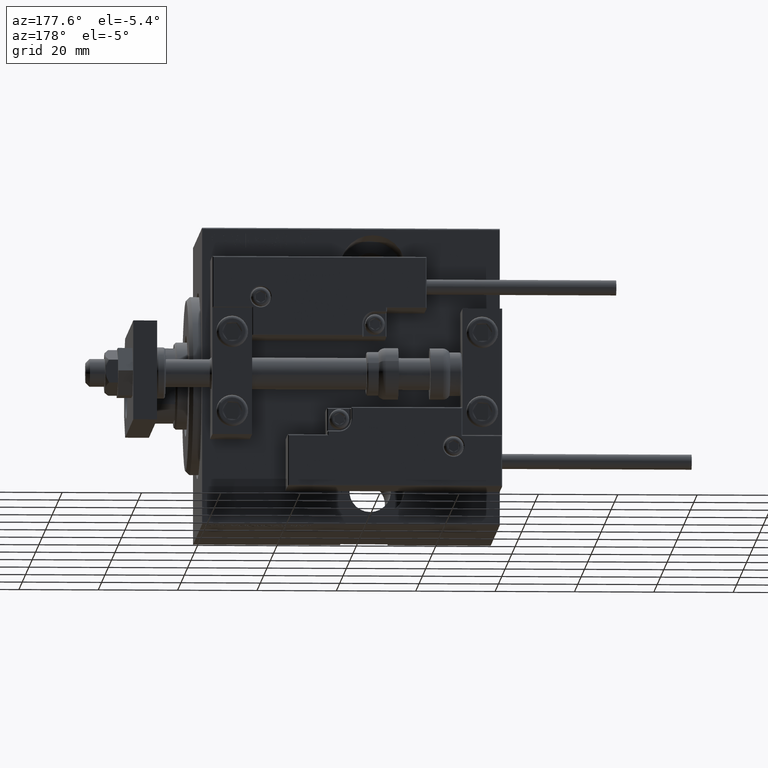
[diagram: clean part render]
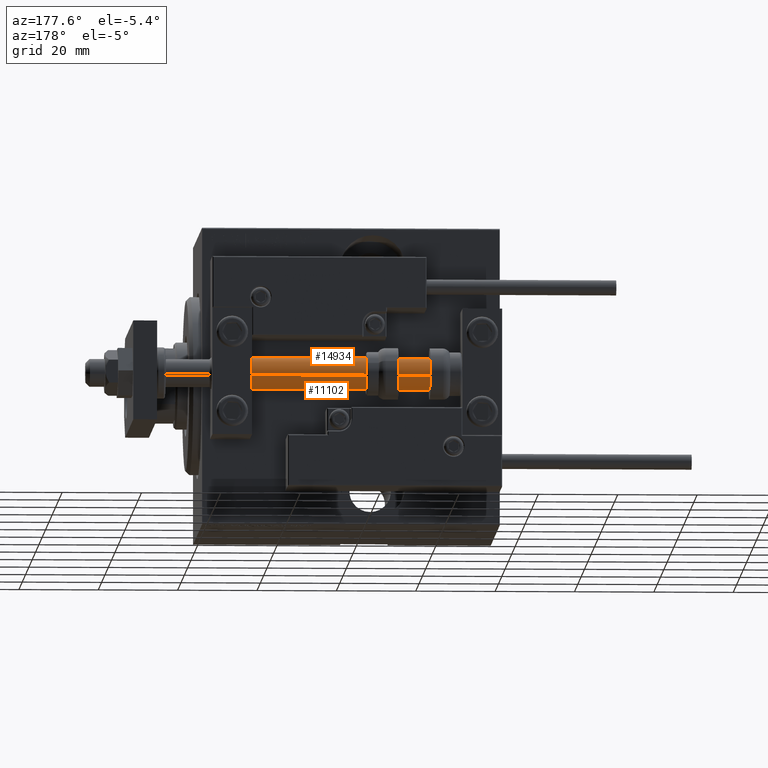
[diagram: same view with one multi-face feature highlighted, each face labeled with its STEP entity id]
A machine part, auxiliary view. The highlighted faces form ONE feature: a constant-radius fillet chain: 2 tangent blend faces with common blend radius 4 mm. The faces share edges in the B-rep.
Their STEP definitions:
[1] entity #14934 (Cylinder):
#660 = DIRECTION ( 'NONE',  ( -0.000000000000000000, -0.000000000000000000, 1.000000000000000000 ) ) ;
#909 = DIRECTION ( 'NONE',  ( 1.000000000000000000, 0.000000000000000000, 0.000000000000000000 ) ) ;
#1716 = DIRECTION ( 'NONE',  ( 1.000000000000000000, 0.000000000000000000, 0.000000000000000000 ) ) ;
#3554 = CARTESIAN_POINT ( 'NONE',  ( 4.000000000000000000, 4.898587196589412829E-16, 75.00000000000000000 ) ) ;
#5380 = AXIS2_PLACEMENT_3D ( 'NONE', #10639, #42113, #33807 ) ;
#5488 = CARTESIAN_POINT ( 'NONE',  ( 0.000000000000000000, 0.000000000000000000, 75.00000000000000000 ) ) ;
#6269 = ORIENTED_EDGE ( 'NONE', *, *, #44553, .F. ) ;
#9801 = VECTOR ( 'NONE', #34781, 1000.000000000000000 ) ;
#10639 = CARTESIAN_POINT ( 'NONE',  ( 0.000000000000000000, 0.000000000000000000, 75.00000000000000000 ) ) ;
#11188 = EDGE_CURVE ( 'NONE', #29276, #16529, #28252, .T. ) ;
#14575 = CIRCLE ( 'NONE', #36220, 4.000000000000000000 ) ;
#14934 = ADVANCED_FACE ( 'NONE', ( #37587 ), #19184, .T. ) ;
#15051 = CIRCLE ( 'NONE', #39951, 4.000000000000000000 ) ;
#16529 = VERTEX_POINT ( 'NONE', #27931 ) ;
#19168 = LINE ( 'NONE', #3554, #9801 ) ;
#19184 = CYLINDRICAL_SURFACE ( 'NONE', #5380, 4.000000000000000000 ) ;
#20866 = DIRECTION ( 'NONE',  ( 0.000000000000000000, 0.000000000000000000, 1.000000000000000000 ) ) ;
#21366 = VECTOR ( 'NONE', #24482, 1000.000000000000000 ) ;
#24482 = DIRECTION ( 'NONE',  ( -0.000000000000000000, -0.000000000000000000, -1.000000000000000000 ) ) ;
#24735 = ORIENTED_EDGE ( 'NONE', *, *, #29976, .F. ) ;
#27931 = CARTESIAN_POINT ( 'NONE',  ( -4.000000000000000000, 0.000000000000000000, 2.000000000000029310 ) ) ;
#28252 = LINE ( 'NONE', #35805, #21366 ) ;
#29276 = VERTEX_POINT ( 'NONE', #31023 ) ;
#29976 = EDGE_CURVE ( 'NONE', #47942, #44521, #19168, .T. ) ;
#31023 = CARTESIAN_POINT ( 'NONE',  ( -4.000000000000000000, 0.000000000000000000, 75.00000000000000000 ) ) ;
#31822 = EDGE_CURVE ( 'NONE', #16529, #44521, #15051, .T. ) ;
#33631 = EDGE_LOOP ( 'NONE', ( #24735, #6269, #47340, #48316 ) ) ;
#33807 = DIRECTION ( 'NONE',  ( -1.000000000000000000, 0.000000000000000000, 0.000000000000000000 ) ) ;
#34781 = DIRECTION ( 'NONE',  ( -0.000000000000000000, -0.000000000000000000, -1.000000000000000000 ) ) ;
#35410 = CARTESIAN_POINT ( 'NONE',  ( 0.000000000000000000, 0.000000000000000000, 2.000000000000029310 ) ) ;
#35805 = CARTESIAN_POINT ( 'NONE',  ( -4.000000000000000000, 0.000000000000000000, 75.00000000000000000 ) ) ;
#36220 = AXIS2_PLACEMENT_3D ( 'NONE', #5488, #20866, #1716 ) ;
#37587 = FACE_OUTER_BOUND ( 'NONE', #33631, .T. ) ;
#39951 = AXIS2_PLACEMENT_3D ( 'NONE', #35410, #660, #909 ) ;
#42113 = DIRECTION ( 'NONE',  ( -0.000000000000000000, -0.000000000000000000, -1.000000000000000000 ) ) ;
#43050 = CARTESIAN_POINT ( 'NONE',  ( 4.000000000000000000, 4.898587196589412829E-16, 2.000000000000029310 ) ) ;
#44521 = VERTEX_POINT ( 'NONE', #43050 ) ;
#44553 = EDGE_CURVE ( 'NONE', #29276, #47942, #14575, .T. ) ;
#45830 = CARTESIAN_POINT ( 'NONE',  ( 4.000000000000000000, 4.898587196589412829E-16, 75.00000000000000000 ) ) ;
#47340 = ORIENTED_EDGE ( 'NONE', *, *, #11188, .T. ) ;
#47942 = VERTEX_POINT ( 'NONE', #45830 ) ;
#48316 = ORIENTED_EDGE ( 'NONE', *, *, #31822, .T. ) ;
[2] entity #11102 (Cylinder):
#1116 = AXIS2_PLACEMENT_3D ( 'NONE', #21652, #29192, #44579 ) ;
#2970 = EDGE_CURVE ( 'NONE', #44521, #16529, #40535, .T. ) ;
#3554 = CARTESIAN_POINT ( 'NONE',  ( 4.000000000000000000, 4.898587196589412829E-16, 75.00000000000000000 ) ) ;
#6406 = ORIENTED_EDGE ( 'NONE', *, *, #7914, .F. ) ;
#7153 = ORIENTED_EDGE ( 'NONE', *, *, #11188, .F. ) ;
#7363 = FACE_OUTER_BOUND ( 'NONE', #31757, .T. ) ;
#7914 = EDGE_CURVE ( 'NONE', #47942, #29276, #28615, .T. ) ;
#9801 = VECTOR ( 'NONE', #34781, 1000.000000000000000 ) ;
#10903 = AXIS2_PLACEMENT_3D ( 'NONE', #16709, #43150, #21219 ) ;
#11102 = ADVANCED_FACE ( 'NONE', ( #7363 ), #46424, .T. ) ;
#11188 = EDGE_CURVE ( 'NONE', #29276, #16529, #28252, .T. ) ;
#16529 = VERTEX_POINT ( 'NONE', #27931 ) ;
#16709 = CARTESIAN_POINT ( 'NONE',  ( 0.000000000000000000, 0.000000000000000000, 75.00000000000000000 ) ) ;
#19168 = LINE ( 'NONE', #3554, #9801 ) ;
#21219 = DIRECTION ( 'NONE',  ( 1.000000000000000000, 0.000000000000000000, 0.000000000000000000 ) ) ;
#21366 = VECTOR ( 'NONE', #24482, 1000.000000000000000 ) ;
#21652 = CARTESIAN_POINT ( 'NONE',  ( 0.000000000000000000, 0.000000000000000000, 2.000000000000029310 ) ) ;
#22743 = CARTESIAN_POINT ( 'NONE',  ( 0.000000000000000000, 0.000000000000000000, 75.00000000000000000 ) ) ;
#24482 = DIRECTION ( 'NONE',  ( -0.000000000000000000, -0.000000000000000000, -1.000000000000000000 ) ) ;
#27931 = CARTESIAN_POINT ( 'NONE',  ( -4.000000000000000000, 0.000000000000000000, 2.000000000000029310 ) ) ;
#28252 = LINE ( 'NONE', #35805, #21366 ) ;
#28615 = CIRCLE ( 'NONE', #10903, 4.000000000000000000 ) ;
#29192 = DIRECTION ( 'NONE',  ( -0.000000000000000000, -0.000000000000000000, 1.000000000000000000 ) ) ;
#29276 = VERTEX_POINT ( 'NONE', #31023 ) ;
#29976 = EDGE_CURVE ( 'NONE', #47942, #44521, #19168, .T. ) ;
#31023 = CARTESIAN_POINT ( 'NONE',  ( -4.000000000000000000, 0.000000000000000000, 75.00000000000000000 ) ) ;
#31757 = EDGE_LOOP ( 'NONE', ( #6406, #32634, #40700, #7153 ) ) ;
#32634 = ORIENTED_EDGE ( 'NONE', *, *, #29976, .T. ) ;
#34781 = DIRECTION ( 'NONE',  ( -0.000000000000000000, -0.000000000000000000, -1.000000000000000000 ) ) ;
#35805 = CARTESIAN_POINT ( 'NONE',  ( -4.000000000000000000, 0.000000000000000000, 75.00000000000000000 ) ) ;
#38853 = DIRECTION ( 'NONE',  ( -1.000000000000000000, 0.000000000000000000, 0.000000000000000000 ) ) ;
#40535 = CIRCLE ( 'NONE', #1116, 4.000000000000000000 ) ;
#40700 = ORIENTED_EDGE ( 'NONE', *, *, #2970, .T. ) ;
#43050 = CARTESIAN_POINT ( 'NONE',  ( 4.000000000000000000, 4.898587196589412829E-16, 2.000000000000029310 ) ) ;
#43087 = AXIS2_PLACEMENT_3D ( 'NONE', #22743, #46670, #38853 ) ;
#43150 = DIRECTION ( 'NONE',  ( 0.000000000000000000, 0.000000000000000000, 1.000000000000000000 ) ) ;
#44521 = VERTEX_POINT ( 'NONE', #43050 ) ;
#44579 = DIRECTION ( 'NONE',  ( 1.000000000000000000, 0.000000000000000000, 0.000000000000000000 ) ) ;
#45830 = CARTESIAN_POINT ( 'NONE',  ( 4.000000000000000000, 4.898587196589412829E-16, 75.00000000000000000 ) ) ;
#46424 = CYLINDRICAL_SURFACE ( 'NONE', #43087, 4.000000000000000000 ) ;
#46670 = DIRECTION ( 'NONE',  ( -0.000000000000000000, -0.000000000000000000, -1.000000000000000000 ) ) ;
#47942 = VERTEX_POINT ( 'NONE', #45830 ) ;